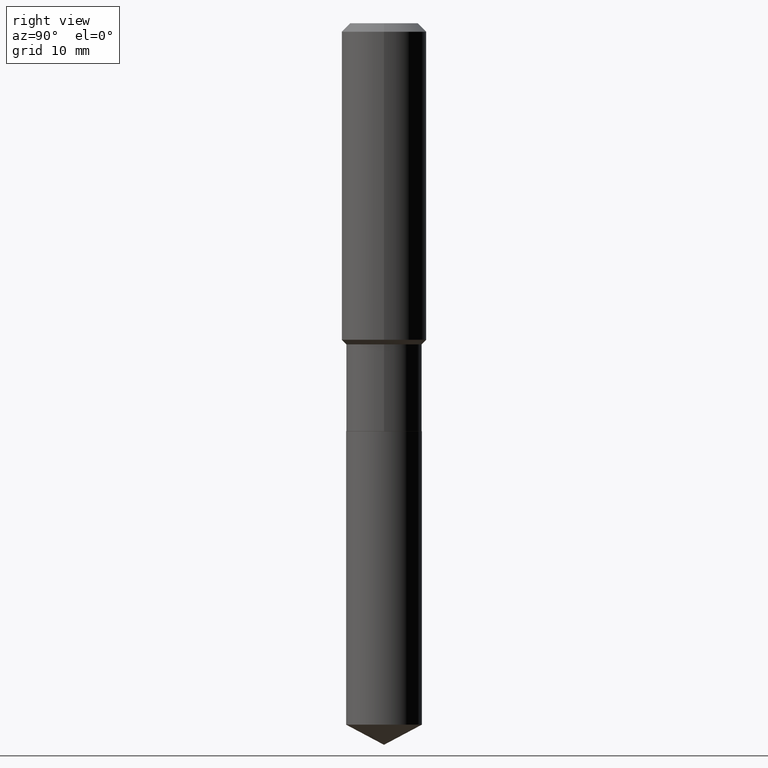
[diagram: clean part render]
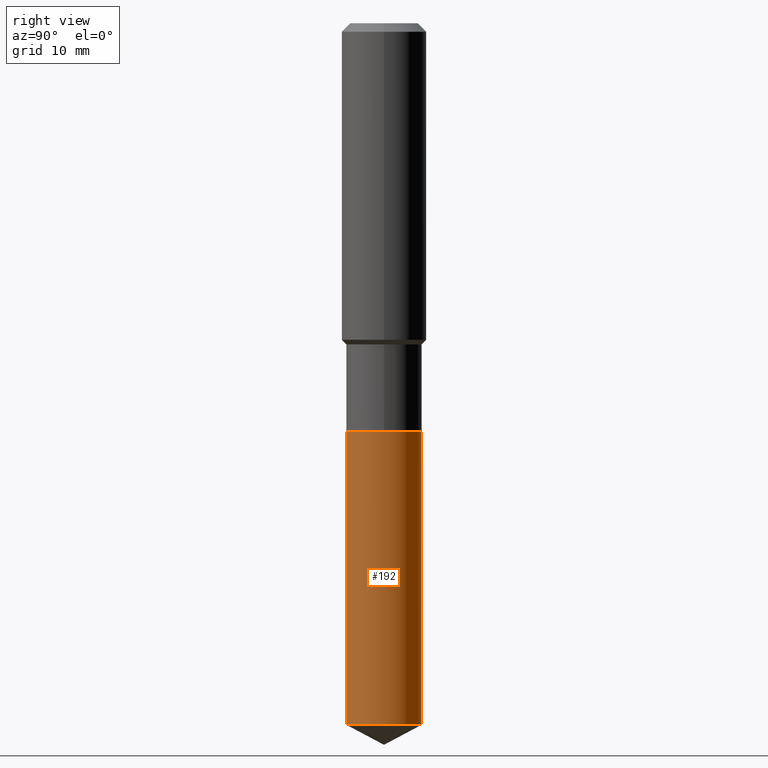
[diagram: same view with one face highlighted and labeled with its STEP entity id]
A machine part, right view. The second image highlights one B-rep face of the part: STEP entity #192.
In plain terms, the highlighted cylindrical surface (partial cylindrical patch) has radius 5.3505 mm, axis along (-0, 0, 1).
Its self-contained STEP definition (entity closure, byte-faithful):
#18 = EDGE_CURVE ( 'NONE', #453, #127, #290, .T. ) ;
#45 = ORIENTED_EDGE ( 'NONE', *, *, #449, .F. ) ;
#58 = EDGE_CURVE ( 'NONE', #127, #115, #254, .T. ) ;
#88 = CARTESIAN_POINT ( 'NONE',  ( 1.496758272878746719E-15, 0.2106499999999921213, -2.271600000000000730 ) ) ;
#101 = EDGE_LOOP ( 'NONE', ( #264, #420, #103, #45 ) ) ;
#103 = ORIENTED_EDGE ( 'NONE', *, *, #412, .F. ) ;
#113 = LINE ( 'NONE', #308, #387 ) ;
#115 = VERTEX_POINT ( 'NONE', #88 ) ;
#125 = FACE_OUTER_BOUND ( 'NONE', #101, .T. ) ;
#127 = VERTEX_POINT ( 'NONE', #240 ) ;
#139 = CIRCLE ( 'NONE', #166, 0.2106500000000000039 ) ;
#166 = AXIS2_PLACEMENT_3D ( 'NONE', #391, #486, #218 ) ;
#180 = DIRECTION ( 'NONE',  ( -2.445388198890624822E-29, 3.491596773076768913E-15, 1.000000000000000000 ) ) ;
#187 = AXIS2_PLACEMENT_3D ( 'NONE', #435, #320, #467 ) ;
#192 = ADVANCED_FACE ( 'NONE', ( #125 ), #208, .T. ) ;
#208 = CYLINDRICAL_SURFACE ( 'NONE', #319, 0.2106500000000000039 ) ;
#218 = DIRECTION ( 'NONE',  ( -6.982962677686265922E-15, -1.000000000000000000, 3.890597664843479129E-15 ) ) ;
#224 = CARTESIAN_POINT ( 'NONE',  ( 1.496758272878706487E-15, 0.2106499999999920936, -2.271600000000000730 ) ) ;
#240 = CARTESIAN_POINT ( 'NONE',  ( 1.496758272878745930E-15, 0.2106499999999863759, -3.903695408220510199 ) ) ;
#254 = LINE ( 'NONE', #224, #383 ) ;
#262 = CARTESIAN_POINT ( 'NONE',  ( -1.470961088054556343E-15, -0.2106500000000079420, -2.271599999999998953 ) ) ;
#264 = ORIENTED_EDGE ( 'NONE', *, *, #18, .T. ) ;
#279 = DIRECTION ( 'NONE',  ( -2.445388198890624822E-29, 3.491596773076768913E-15, 1.000000000000000000 ) ) ;
#285 = DIRECTION ( 'NONE',  ( -6.982962677686265922E-15, -1.000000000000000000, 3.890597664843479129E-15 ) ) ;
#290 = CIRCLE ( 'NONE', #187, 0.2106500000000000039 ) ;
#308 = CARTESIAN_POINT ( 'NONE',  ( -1.470961088054556343E-15, -0.2106500000000079420, -2.271599999999998953 ) ) ;
#316 = VERTEX_POINT ( 'NONE', #262 ) ;
#318 = CARTESIAN_POINT ( 'NONE',  ( -1.470961088054516703E-15, -0.2106500000000136041, -3.903695408220509311 ) ) ;
#319 = AXIS2_PLACEMENT_3D ( 'NONE', #336, #372, #285 ) ;
#320 = DIRECTION ( 'NONE',  ( -2.445388198890624822E-29, 3.491596773076768913E-15, 1.000000000000000000 ) ) ;
#336 = CARTESIAN_POINT ( 'NONE',  ( 5.555126940130156501E-29, -7.931249009316088980E-15, -2.271599999999999842 ) ) ;
#372 = DIRECTION ( 'NONE',  ( -2.445388198890624822E-29, 3.491596773076768913E-15, 1.000000000000000000 ) ) ;
#383 = VECTOR ( 'NONE', #180, 39.37007874015748143 ) ;
#387 = VECTOR ( 'NONE', #279, 39.37007874015748143 ) ;
#391 = CARTESIAN_POINT ( 'NONE',  ( 5.555126940130156501E-29, -7.931249009316088980E-15, -2.271599999999999842 ) ) ;
#412 = EDGE_CURVE ( 'NONE', #316, #115, #139, .T. ) ;
#420 = ORIENTED_EDGE ( 'NONE', *, *, #58, .T. ) ;
#435 = CARTESIAN_POINT ( 'NONE',  ( 9.546233790856167892E-29, -1.362986807001223316E-14, -3.903695408220509755 ) ) ;
#449 = EDGE_CURVE ( 'NONE', #453, #316, #113, .T. ) ;
#453 = VERTEX_POINT ( 'NONE', #318 ) ;
#467 = DIRECTION ( 'NONE',  ( -6.982962677686265922E-15, -1.000000000000000000, 2.593731776562319814E-15 ) ) ;
#486 = DIRECTION ( 'NONE',  ( -2.445388198890624822E-29, 3.491596773076768913E-15, 1.000000000000000000 ) ) ;